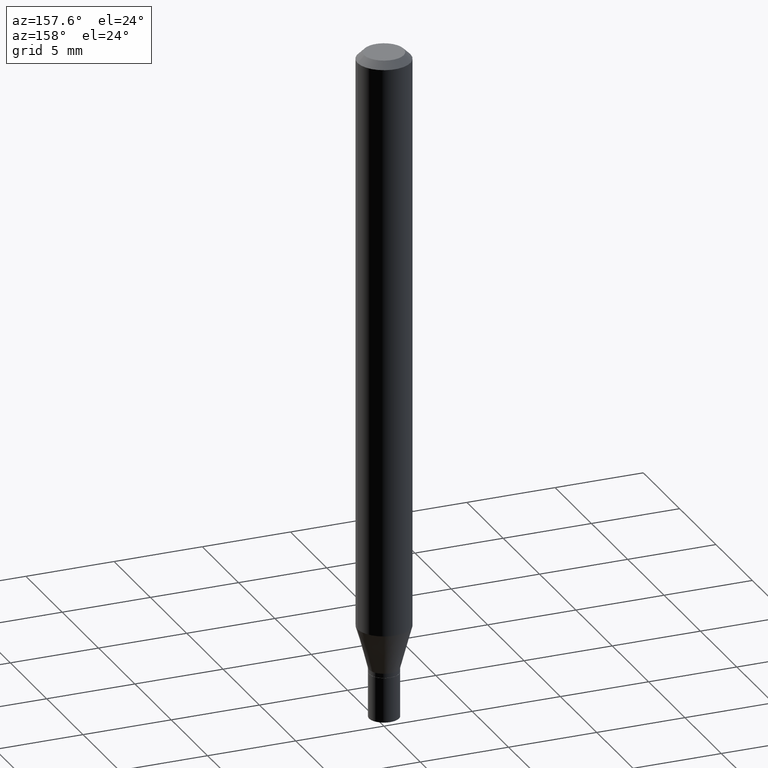
[diagram: clean part render]
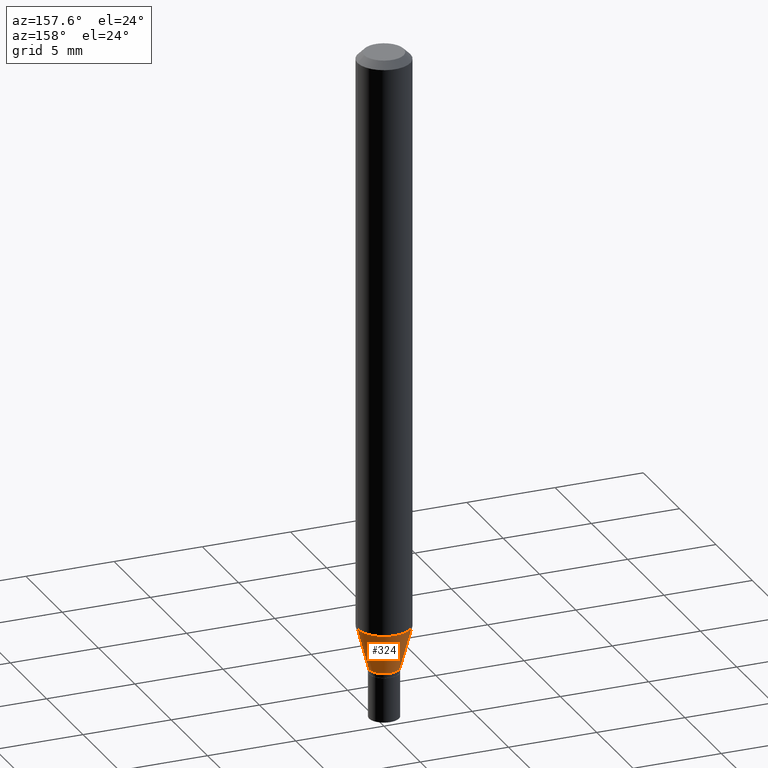
[diagram: same view with one face highlighted and labeled with its STEP entity id]
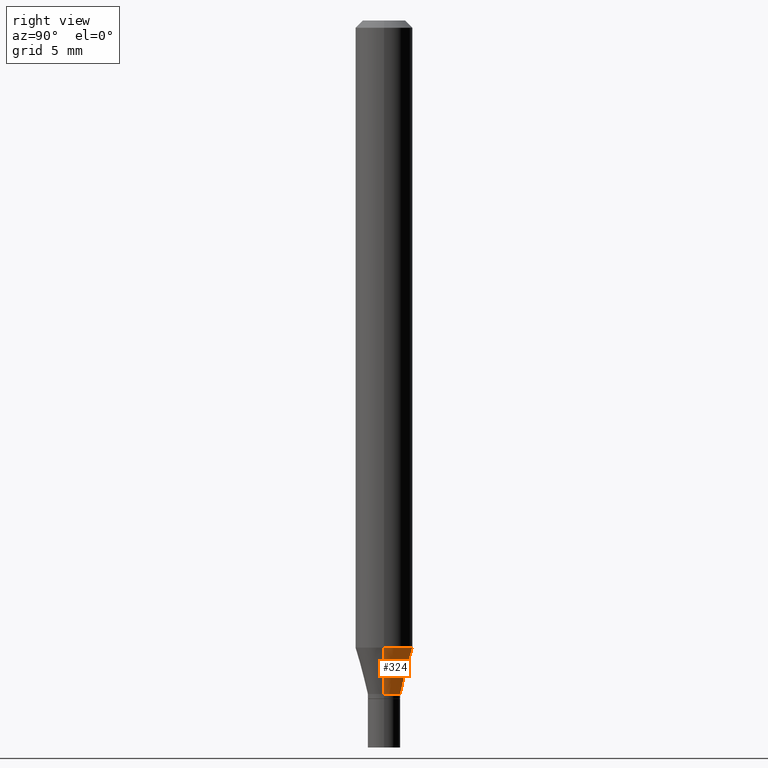
[diagram: same view with one face highlighted and labeled with its STEP entity id]
A machine part, auxiliary view. The second image highlights one B-rep face of the part: STEP entity #324.
A second angle (right view) of the same face is appended — the face is thin or edge-on in the first view.
In plain terms, the highlighted conical surface has half-angle 15 deg.
Its self-contained STEP definition (entity closure, byte-faithful):
#9 = VECTOR ( 'NONE', #447, 39.37007874015748143 ) ;
#22 = FACE_OUTER_BOUND ( 'NONE', #246, .T. ) ;
#34 = AXIS2_PLACEMENT_3D ( 'NONE', #116, #44, #284 ) ;
#44 = DIRECTION ( 'NONE',  ( -2.445468806185136597E-29, 3.491481338843145583E-15, 1.000000000000000000 ) ) ;
#59 = CIRCLE ( 'NONE', #184, 0.05904999999999999832 ) ;
#73 = CARTESIAN_POINT ( 'NONE',  ( 0.05904999999999999832, -4.930528539367636810E-15, -1.294059499326237761 ) ) ;
#74 = CIRCLE ( 'NONE', #34, 0.03345000000000020179 ) ;
#83 = VERTEX_POINT ( 'NONE', #224 ) ;
#84 = CARTESIAN_POINT ( 'NONE',  ( 0.03345000000000020179, -5.085342570025042633E-15, -1.389600000000000168 ) ) ;
#92 = VERTEX_POINT ( 'NONE', #73 ) ;
#99 = EDGE_CURVE ( 'NONE', #395, #83, #434, .T. ) ;
#101 = AXIS2_PLACEMENT_3D ( 'NONE', #191, #127, #230 ) ;
#103 = EDGE_CURVE ( 'NONE', #404, #395, #74, .T. ) ;
#116 = CARTESIAN_POINT ( 'NONE',  ( 3.398223453074866122E-29, -4.851762468456435200E-15, -1.389600000000000168 ) ) ;
#123 = DIRECTION ( 'NONE',  ( 1.000000000000000000, -6.982962677686273021E-15, 0.000000000000000000 ) ) ;
#127 = DIRECTION ( 'NONE',  ( -2.445468806185136597E-29, 3.491481338843145583E-15, 1.000000000000000000 ) ) ;
#140 = DIRECTION ( 'NONE',  ( -0.2588190451025209615, 5.211531920934547097E-15, 0.9659258262890682012 ) ) ;
#184 = AXIS2_PLACEMENT_3D ( 'NONE', #340, #234, #123 ) ;
#191 = CARTESIAN_POINT ( 'NONE',  ( 3.398223453074866122E-29, -4.851762468456435200E-15, -1.389600000000000168 ) ) ;
#192 = CONICAL_SURFACE ( 'NONE', #101, 0.03345000000000020179, 0.2617993877991496299 ) ;
#204 = EDGE_CURVE ( 'NONE', #92, #83, #59, .T. ) ;
#212 = CARTESIAN_POINT ( 'NONE',  ( 0.03345000000000020179, -5.085342570025042633E-15, -1.389600000000000168 ) ) ;
#224 = CARTESIAN_POINT ( 'NONE',  ( -0.05904999999999999832, -4.098609107783923974E-15, -1.294059499326237761 ) ) ;
#230 = DIRECTION ( 'NONE',  ( 1.000000000000000000, -6.982962677686265133E-15, 0.000000000000000000 ) ) ;
#234 = DIRECTION ( 'NONE',  ( -2.445468806185136597E-29, 3.491481338843145583E-15, 1.000000000000000000 ) ) ;
#246 = EDGE_LOOP ( 'NONE', ( #297, #412, #313, #309 ) ) ;
#276 = VECTOR ( 'NONE', #140, 39.37007874015748143 ) ;
#284 = DIRECTION ( 'NONE',  ( 1.000000000000000000, -6.982962677686265133E-15, 0.000000000000000000 ) ) ;
#288 = EDGE_CURVE ( 'NONE', #404, #92, #304, .T. ) ;
#297 = ORIENTED_EDGE ( 'NONE', *, *, #103, .T. ) ;
#304 = LINE ( 'NONE', #84, #9 ) ;
#309 = ORIENTED_EDGE ( 'NONE', *, *, #288, .F. ) ;
#313 = ORIENTED_EDGE ( 'NONE', *, *, #204, .F. ) ;
#324 = ADVANCED_FACE ( 'NONE', ( #22 ), #192, .T. ) ;
#340 = CARTESIAN_POINT ( 'NONE',  ( 3.164582138949869656E-29, -4.518184593250262678E-15, -1.294059499326237761 ) ) ;
#395 = VERTEX_POINT ( 'NONE', #429 ) ;
#404 = VERTEX_POINT ( 'NONE', #212 ) ;
#412 = ORIENTED_EDGE ( 'NONE', *, *, #99, .T. ) ;
#429 = CARTESIAN_POINT ( 'NONE',  ( -0.03345000000000020179, -4.356347515564302509E-15, -1.389600000000000168 ) ) ;
#434 = LINE ( 'NONE', #443, #276 ) ;
#443 = CARTESIAN_POINT ( 'NONE',  ( -0.03345000000000020179, -4.614085923344681043E-15, -1.389600000000000168 ) ) ;
#447 = DIRECTION ( 'NONE',  ( 0.2588190451025209615, 1.565188264969624926E-15, 0.9659258262890682012 ) ) ;